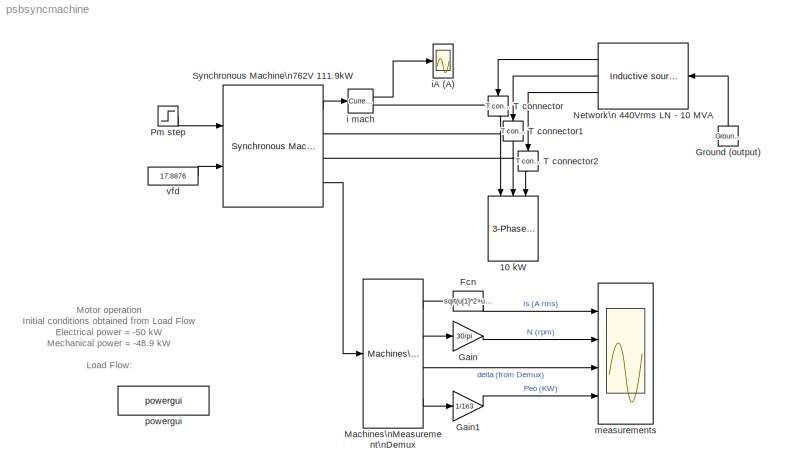
MODEL psbsyncmachine
KIND model
CONFIG InitFcn = powericon('psbinitsys',bdroot);
BLOCK [Reference] 10 kW  REF=powerlib2/Elements/3-Phase\nSeries RLC Load
  P3 = 10e3
  Ports = [3]
  QC3 = 0
  QL3 = 0
  SourceBlock = powerlib2/Elements/3-Phase\nSeries RLC Load
  SourceType = 3-phase series RLC load
  Vpp = 762
  fn = 60
BLOCK [Fcn] Fcn
  Expr = sqrt(u[1]^2+u[2]^2)/sqrt(2)
BLOCK [Gain] Gain
  Gain = 30/pi
BLOCK [Gain] Gain1
  Gain = 1/1e3
BLOCK [Reference] Ground (output)  REF=powerlib2/Connectors/Ground (output)
  PSBOutputType = 1
  Ports = [0, 1]
  SourceBlock = powerlib2/Connectors/Ground (output)
  SourceType = Ground
  Tag = PoWeRsYsTeMbLoCk
BLOCK [Reference] Machines\nMeasurement\nDemux  REF=powerlib2/Machines/Machines\nMeasurement\nDemux
  Ports = [1, 4]
  SourceBlock = powerlib2/Machines/Machines\nMeasurement\nDemux
  SourceType = Machine measurements
  asm1 = on
  asm10 = on
  asm11 = on
  asm2 = on
  asm3 = on
  asm4 = on
  asm5 = on
  asm6 = on
  asm7 = on
  asm8 = on
  asm9 = on
  lastType = 1
  machType = Synchronous
  pmsm1 = on
  pmsm2 = on
  pmsm3 = on
  pmsm4 = on
  pmsm5 = on
  pmsm6 = on
  sm1 = off
  sm10 = off
  sm11 = off
  sm115 = off
  sm12 = on
  sm13 = on
  sm14 = off
  sm2 = on
  sm3 = off
  sm4 = off
  sm5 = off
  sm6 = off
  sm7 = off
  sm8 = on
  sm9 = off
  ssm1 = on
  ssm2 = on
  ssm3 = on
  ssm4 = on
  ssm5 = on
  ssm6 = on
BLOCK [Reference] Network\n 440Vrms LN -  10 MVA  REF=powerlib_extras/Three-Phase\nLibrary/Inductive source\nwith neutral
  F = 60
  L = 762^2/10e6/(2*pi*60)
  Phi = 0
  Ports = [1, 3]
  R = 762^2/10e6/10
  SourceBlock = powerlib_extras/Three-Phase\nLibrary/Inductive source\nwith neutral
  SourceType = 3-phase inductive source - Ungrounded neutral
  V = 440*sqrt(2)
BLOCK [Step] Pm step
  After = -60000
  Before = -48863
  SampleTime = 0
  Time = 0.1
BLOCK [Reference] Synchronous Machine\n762V 111.9kW  REF=powerlib2/Machines/Synchronous Machine\nSI Fundamental
  LoadFlowParameters = [1,0,0,0,0]
  PSBOutputType = 1110
  Ports = [2, 4]
  SourceBlock = powerlib2/Machines/Synchronous Machine\nSI Fundamental
  SourceType = Synchronous Machine
  Tag = PoWeRsYsTeMbLoCk
  iounits = 1
  rotorType = Salient-pole
  x1 = [ 111.9e3 440*sqrt(3)  60  0]
  x2 = [ .26 1.14e-3 13.7e-3 11.0e-3 ]\n
  x3 = [ 0.13 2.1e-3 ]\n
  x4 = [ 0.0224 1.4e-3 0.02 1e-3 ]\n
  x4b = [ 1 2 3 4 5 6 ]
  x5 = [ 24.9 0 2 ]
  x6 = [0 -111.483 53.9768 53.9768 53.9768 -173.297 66.7033 -53.2967 17.8876]
  x7 = off
  x8 = []
  x9 = off
BLOCK [Reference] T connector  REF=powerlib2/Connectors/T connector
  PSBOutputType = 1
  Ports = [1, 1, 1]
  SourceBlock = powerlib2/Connectors/T connector
  SourceType = Bus Bar
  Tag = PoWeRsYsTeMbLoCk
BLOCK [Reference] T connector1  REF=powerlib2/Connectors/T connector
  PSBOutputType = 1
  Ports = [1, 1, 1]
  SourceBlock = powerlib2/Connectors/T connector
  SourceType = Bus Bar
  Tag = PoWeRsYsTeMbLoCk
BLOCK [Reference] T connector2  REF=powerlib2/Connectors/T connector
  PSBOutputType = 1
  Ports = [1, 1, 1]
  SourceBlock = powerlib2/Connectors/T connector
  SourceType = Bus Bar
  Tag = PoWeRsYsTeMbLoCk
BLOCK [Reference] i mach  REF=powerlib2/Measurements/Current Measurement
  OutputType = Magnitude
  PSBOutputType = 01
  PSBequivalent = 0
  PhasorSimulation = off
  Ports = [1, 2]
  SourceBlock = powerlib2/Measurements/Current Measurement
  SourceType = Current Measurement
  Tag = PoWeRsYsTeMmEaSuReMeNt
BLOCK [Scope] iA (A)
  DataFormat = Array
  LimitDataPoints = off
  NumInputPorts = 1
  Ports = [1]
  SaveName = is1
  SaveToWorkspace = on
  TickLabels = on
  TimeRange = 1
  YMax = 520
  YMin = 430
BLOCK [Scope] measurements
  DataFormat = StructureWithTime
  LimitDataPoints = off
  NumInputPorts = 4
  Ports = [4]
  SaveName = is2
  SaveToWorkspace = on
  TickLabels = on
  TimeRange = 1
  YMax = 53~5~5~5
  YMin = 38~-5~-5~-5
BLOCK [Reference] powergui  REF=powerlib2/powergui
  DisplayStyle = off
  Frange = logspace(0,3,50)
  FreqAxis = off
  MaxFrequency = 1000
  Ports = []
  RmsSteady = 1
  SourceBlock = powerlib2/powergui
  SourceType = PSB option menu block
  StartTime = 0.0
  Ts = 0
  Xlog = off
  Ylog = off
  ZoomFFT = on
  cycles = 2
  display = off
  echomessages = off
  frequency = 60
  frequencyindice = 1
  frequencyindicesteady = 1
  fundamental = 60
  methode = off
  save = off
  variable = ZData
BLOCK [Constant] vfd
  Value = 17.8876
ANNOTATION (root): Motor operation\nInitial conditions obtained from Load Flow\nElectrical power = -50 kW\nMechanical power = -48.9 kW\n\nLoad Flow: \nP&V Generator \nactive power -50e3 Watts
LINE Fcn:1 -> measurements:1
LINE Gain1:1 -> measurements:4
LINE Gain:1 -> measurements:2
LINE Ground (output):1 -> Network\n 440Vrms LN -  10 MVA:1
LINE Machines\nMeasurement\nDemux:1 -> Fcn:1
LINE Machines\nMeasurement\nDemux:2 -> Gain:1
LINE Machines\nMeasurement\nDemux:3 -> measurements:3
LINE Machines\nMeasurement\nDemux:4 -> Gain1:1
LINE Network\n 440Vrms LN -  10 MVA:1 -> T connector:1
LINE Network\n 440Vrms LN -  10 MVA:2 -> T connector1:1
LINE Network\n 440Vrms LN -  10 MVA:3 -> T connector2:1
LINE Pm step:1 -> Synchronous Machine\n762V 111.9kW:1
LINE Synchronous Machine\n762V 111.9kW:1 -> i mach:1
LINE Synchronous Machine\n762V 111.9kW:2 -> T connector1:enable
LINE Synchronous Machine\n762V 111.9kW:3 -> T connector2:enable
LINE Synchronous Machine\n762V 111.9kW:4 -> Machines\nMeasurement\nDemux:1
LINE T connector1:1 -> 10 kW:2
LINE T connector2:1 -> 10 kW:3
LINE T connector:1 -> 10 kW:1
LINE i mach:1 -> iA (A):1
LINE i mach:2 -> T connector:enable
LINE vfd:1 -> Synchronous Machine\n762V 111.9kW:2
